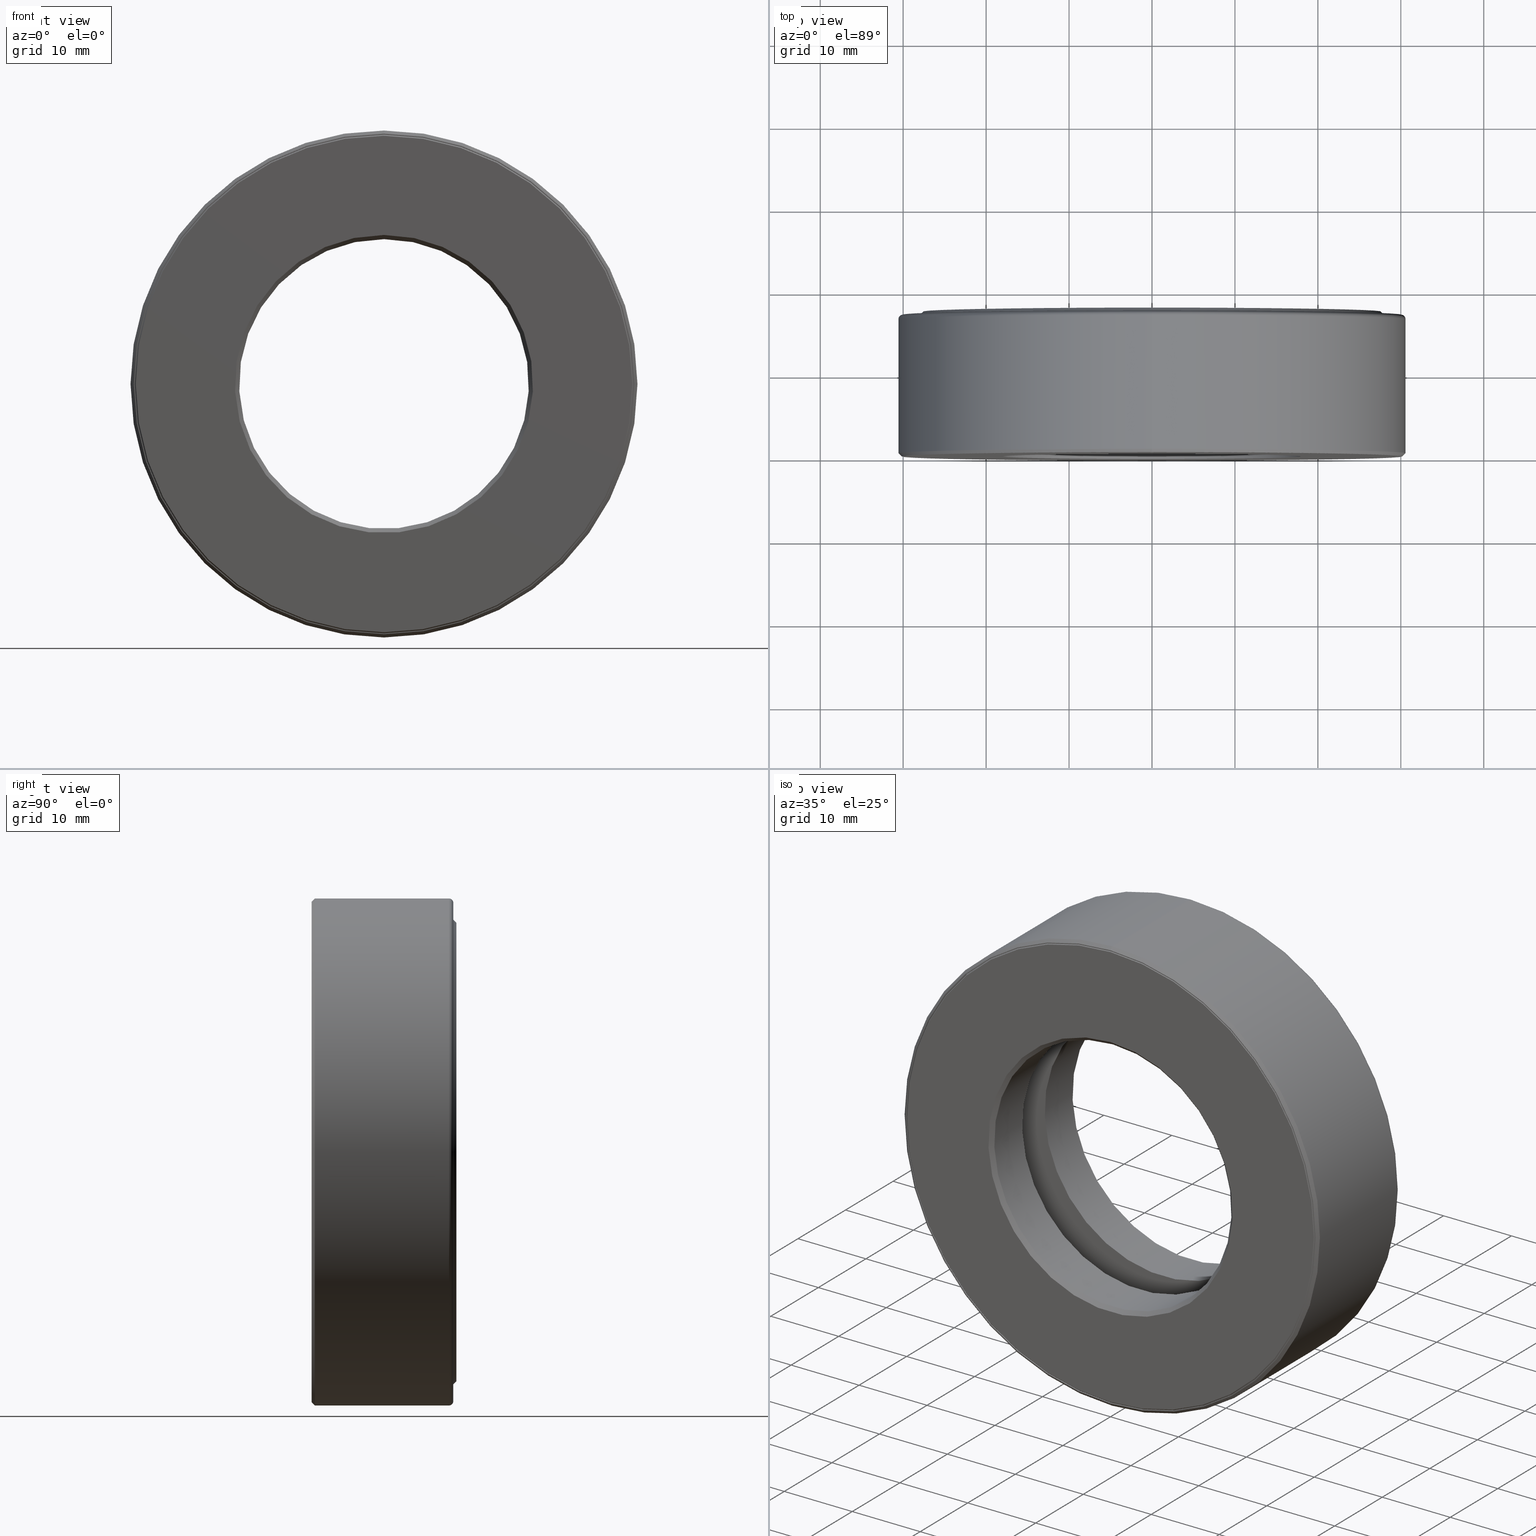
[diagram: canonical four-view strip — front | top / right | iso, engineering-drawing reading convention]
A machine part, canonical four-view strip (front | top / right | iso — engineering-drawing reading convention). The complete STEP part file that produces these views, byte-faithful:
ISO-10303-21;
HEADER;
FILE_DESCRIPTION (( 'STEP AP203' ),
    '1' );
FILE_NAME ('T-100-17A.step',
    '2016-06-29T18:27:21',
    ( '' ),
    ( '' ),
    'SwSTEP 2.0',
    'SolidWorks 2016',
    '' );
FILE_SCHEMA (( 'CONFIG_CONTROL_DESIGN' ));
ENDSEC;

DATA;
#1 = CONICAL_SURFACE ( 'NONE', #102, 1.188125000000000100, 0.7853981633974460600 ) ;
#2 = VERTEX_POINT ( 'NONE', #566 ) ;
#3 = EDGE_LOOP ( 'NONE', ( #135 ) ) ;
#4 = DIRECTION ( 'NONE',  ( -0.0000000000000000000, 1.000000000000000000, -0.0000000000000000000 ) ) ;
#5 = EDGE_LOOP ( 'NONE', ( #107 ) ) ;
#6 = EDGE_LOOP ( 'NONE', ( #100 ) ) ;
#7 = ORIENTED_EDGE ( 'NONE', *, *, #285, .T. ) ;
#8 = VERTEX_POINT ( 'NONE', #221 ) ;
#9 = ADVANCED_BREP_SHAPE_REPRESENTATION ( 'T-100-17A', ( #374, #154, #272, #131, #429, #91, #468 ), #404 ) ;
#10 = AXIS2_PLACEMENT_3D ( 'NONE', #507, #123, #599 ) ;
#11 = DIRECTION ( 'NONE',  ( 0.0000000000000000000, 0.0000000000000000000, 1.000000000000000000 ) ) ;
#12 = ORIENTED_EDGE ( 'NONE', *, *, #348, .T. ) ;
#13 = VERTEX_POINT ( 'NONE', #268 ) ;
#14 = EDGE_LOOP ( 'NONE', ( #346 ) ) ;
#15 = ORIENTED_EDGE ( 'NONE', *, *, #432, .T. ) ;
#16 = CARTESIAN_POINT ( 'NONE',  ( 0.0000000000000000000, 0.2500000000000001100, 0.0000000000000000000 ) ) ;
#17 = DIRECTION ( 'NONE',  ( -0.0000000000000000000, 1.000000000000000000, -0.0000000000000000000 ) ) ;
#18 = CARTESIAN_POINT ( 'NONE',  ( 0.0000000000000000000, -6.829619984160658000E-017, 0.0000000000000000000 ) ) ;
#19 = PERSON_AND_ORGANIZATION ( #299, #602 ) ;
#20 = EDGE_CURVE ( 'NONE', #86, #86, #68, .T. ) ;
#21 = EDGE_LOOP ( 'NONE', ( #570 ) ) ;
#22 = PERSON_AND_ORGANIZATION ( #299, #602 ) ;
#23 = DIRECTION ( 'NONE',  ( 0.0000000000000000000, 0.0000000000000000000, 1.000000000000000000 ) ) ;
#24 = DIRECTION ( 'NONE',  ( 0.0000000000000000000, 0.0000000000000000000, 1.000000000000000000 ) ) ;
#25 = PRODUCT_DEFINITION ( 'UNKNOWN', '', #105, #288 ) ;
#26 = DIRECTION ( 'NONE',  ( 0.0000000000000000000, 0.0000000000000000000, 1.000000000000000000 ) ) ;
#27 =( LENGTH_UNIT ( ) NAMED_UNIT ( * ) SI_UNIT ( $, .METRE. ) );
#28 = CARTESIAN_POINT ( 'NONE',  ( 0.0000000000000000000, -6.509481547403127300E-017, 0.0000000000000000000 ) ) ;
#29 = EDGE_CURVE ( 'NONE', #321, #321, #478, .T. ) ;
#30 = PERSON_AND_ORGANIZATION_ROLE ( 'design_owner' ) ;
#31 = PERSON_AND_ORGANIZATION ( #299, #602 ) ;
#32 = CARTESIAN_POINT ( 'NONE',  ( 0.0000000000000000000, 0.0000000000000000000, 0.0000000000000000000 ) ) ;
#33 = DIRECTION ( 'NONE',  ( -0.0000000000000000000, 1.000000000000000000, 0.0000000000000000000 ) ) ;
#34 = DIRECTION ( 'NONE',  ( 0.0000000000000000000, 0.0000000000000000000, 1.000000000000000000 ) ) ;
#35 =( NAMED_UNIT ( * ) SI_UNIT ( $, .STERADIAN. ) SOLID_ANGLE_UNIT ( ) );
#36 = DIRECTION ( 'NONE',  ( 0.0000000000000000000, 0.0000000000000000000, 1.000000000000000000 ) ) ;
#37 = AXIS2_PLACEMENT_3D ( 'NONE', #543, #400, #159 ) ;
#38 = CARTESIAN_POINT ( 'NONE',  ( 0.0000000000000000000, 0.0000000000000000000, 0.0000000000000000000 ) ) ;
#39 = ADVANCED_FACE ( 'NONE', ( #561, #97 ), #69, .F. ) ;
#40 = FACE_BOUND ( 'NONE', #229, .T. ) ;
#41 = DIRECTION ( 'NONE',  ( 0.0000000000000000000, -1.000000000000000000, 0.0000000000000000000 ) ) ;
#42 = CONICAL_SURFACE ( 'NONE', #389, 0.6874999999999998900, 0.7853981633974415100 ) ;
#43 = DIRECTION ( 'NONE',  ( -0.0000000000000000000, 1.000000000000000000, -0.0000000000000000000 ) ) ;
#44 = AXIS2_PLACEMENT_3D ( 'NONE', #168, #357, #230 ) ;
#45 = EDGE_CURVE ( 'NONE', #464, #464, #562, .T. ) ;
#46 = FACE_OUTER_BOUND ( 'NONE', #517, .T. ) ;
#47 = CONICAL_SURFACE ( 'NONE', #523, 0.6875000000000000000, 0.7853981633974415100 ) ;
#48 = LOCAL_TIME ( 14, 27, 21.00000000000000000, #52 ) ;
#49 = AXIS2_PLACEMENT_3D ( 'NONE', #431, #156, #484 ) ;
#50 = ORIENTED_EDGE ( 'NONE', *, *, #339, .T. ) ;
#51 = DIRECTION ( 'NONE',  ( 0.0000000000000000000, 0.0000000000000000000, 1.000000000000000000 ) ) ;
#52 = COORDINATED_UNIVERSAL_TIME_OFFSET ( 5, 0, .BEHIND. ) ;
#53 = EDGE_LOOP ( 'NONE', ( #50 ) ) ;
#54 = DIRECTION ( 'NONE',  ( 0.0000000000000000000, 0.0000000000000000000, 1.000000000000000000 ) ) ;
#55 = CARTESIAN_POINT ( 'NONE',  ( 0.0000000000000000000, 0.6875000000000000000, 0.0000000000000000000 ) ) ;
#56 = CARTESIAN_POINT ( 'NONE',  ( 0.0000000000000000000, 0.4375000000000000000, 0.0000000000000000000 ) ) ;
#57 = FACE_OUTER_BOUND ( 'NONE', #249, .T. ) ;
#58 = EDGE_CURVE ( 'NONE', #338, #338, #175, .T. ) ;
#59 = DIRECTION ( 'NONE',  ( 0.0000000000000000000, -1.000000000000000000, 0.0000000000000000000 ) ) ;
#60 = FACE_BOUND ( 'NONE', #446, .T. ) ;
#61 = ORIENTED_EDGE ( 'NONE', *, *, #395, .T. ) ;
#62 = CIRCLE ( 'NONE', #300, 1.176124999999999600 ) ;
#63 = EDGE_LOOP ( 'NONE', ( #584 ) ) ;
#64 = DIRECTION ( 'NONE',  ( -0.0000000000000000000, 1.000000000000000000, -0.0000000000000000000 ) ) ;
#65 = FACE_BOUND ( 'NONE', #382, .T. ) ;
#66 = CARTESIAN_POINT ( 'NONE',  ( 0.0000000000000000000, 0.0000000000000000000, 0.0000000000000000000 ) ) ;
#67 = AXIS2_PLACEMENT_3D ( 'NONE', #550, #284, #319 ) ;
#68 = CIRCLE ( 'NONE', #378, 1.123125000000000200 ) ;
#69 = CYLINDRICAL_SURFACE ( 'NONE', #99, 1.123125000000000200 ) ;
#70 = AXIS2_PLACEMENT_3D ( 'NONE', #304, #210, #54 ) ;
#71 = SECURITY_CLASSIFICATION_LEVEL ( 'unclassified' ) ;
#72 = DIRECTION ( 'NONE',  ( 0.0000000000000000000, 0.0000000000000000000, 1.000000000000000000 ) ) ;
#73 = ADVANCED_FACE ( 'NONE', ( ), #481, .T. ) ;
#74 = APPROVAL_STATUS ( 'not_yet_approved' ) ;
#75 = FACE_OUTER_BOUND ( 'NONE', #486, .T. ) ;
#76 = DIRECTION ( 'NONE',  ( 0.0000000000000000000, 0.0000000000000000000, 1.000000000000000000 ) ) ;
#77 = ADVANCED_FACE ( 'NONE', ( #340, #388 ), #548, .F. ) ;
#78 = FACE_OUTER_BOUND ( 'NONE', #359, .T. ) ;
#79 = EDGE_LOOP ( 'NONE', ( #417 ) ) ;
#80 = PLANE ( 'NONE',  #578 ) ;
#81 = CARTESIAN_POINT ( 'NONE',  ( 0.0000000000000000000, 0.6524999999999997500, 0.0000000000000000000 ) ) ;
#82 = DIRECTION ( 'NONE',  ( -0.0000000000000000000, 1.000000000000000000, 0.0000000000000000000 ) ) ;
#83 = AXIS2_PLACEMENT_3D ( 'NONE', #179, #460, #127 ) ;
#84 = AXIS2_PLACEMENT_3D ( 'NONE', #406, #82, #274 ) ;
#85 = EDGE_LOOP ( 'NONE', ( #254 ) ) ;
#86 = VERTEX_POINT ( 'NONE', #138 ) ;
#87 = ORIENTED_EDGE ( 'NONE', *, *, #267, .F. ) ;
#88 = CIRCLE ( 'NONE', #438, 0.6875000000000000000 ) ;
#89 = DIRECTION ( 'NONE',  ( 0.0000000000000000000, 0.0000000000000000000, 1.000000000000000000 ) ) ;
#90 = SPHERICAL_SURFACE ( 'NONE', #158, 0.1562500000000000000 ) ;
#91 = MANIFOLD_SOLID_BREP ( 'BALLS[3]', #394 ) ;
#92 = ORIENTED_EDGE ( 'NONE', *, *, #139, .T. ) ;
#93 = CYLINDRICAL_SURFACE ( 'NONE', #176, 0.6875000000000000000 ) ;
#94 = AXIS2_PLACEMENT_3D ( 'NONE', #181, #375, #89 ) ;
#95 = CC_DESIGN_DATE_AND_TIME_ASSIGNMENT ( #122, #449, ( #25 ) ) ;
#96 = FACE_OUTER_BOUND ( 'NONE', #85, .T. ) ;
#97 = FACE_OUTER_BOUND ( 'NONE', #79, .T. ) ;
#98 = FACE_OUTER_BOUND ( 'NONE', #118, .T. ) ;
#99 = AXIS2_PLACEMENT_3D ( 'NONE', #601, #405, #398 ) ;
#100 = ORIENTED_EDGE ( 'NONE', *, *, #29, .F. ) ;
#101 = PLANE ( 'NONE',  #600 ) ;
#102 = AXIS2_PLACEMENT_3D ( 'NONE', #18, #428, #51 ) ;
#103 = CIRCLE ( 'NONE', #529, 1.203125000000000000 ) ;
#104 = DIRECTION ( 'NONE',  ( 0.0000000000000000000, 0.0000000000000000000, 1.000000000000000000 ) ) ;
#105 = PRODUCT_DEFINITION_FORMATION_WITH_SPECIFIED_SOURCE ( 'ANY', '', #531, .NOT_KNOWN. ) ;
#106 = EDGE_CURVE ( 'NONE', #555, #555, #358, .T. ) ;
#107 = ORIENTED_EDGE ( 'NONE', *, *, #214, .T. ) ;
#108 = CLOSED_SHELL ( 'NONE', ( #463 ) ) ;
#109 = DIRECTION ( 'NONE',  ( 0.0000000000000000000, 0.0000000000000000000, 1.000000000000000000 ) ) ;
#110 = AXIS2_PLACEMENT_3D ( 'NONE', #248, #573, #11 ) ;
#111 = EDGE_LOOP ( 'NONE', ( #200 ) ) ;
#112 = FACE_BOUND ( 'NONE', #376, .T. ) ;
#113 = EDGE_LOOP ( 'NONE', ( #215 ) ) ;
#114 = AXIS2_PLACEMENT_3D ( 'NONE', #231, #280, #36 ) ;
#115 = FACE_OUTER_BOUND ( 'NONE', #192, .T. ) ;
#116 = CARTESIAN_POINT ( 'NONE',  ( 0.0000000000000000000, 0.02000000000000046900, 0.0000000000000000000 ) ) ;
#117 = CARTESIAN_POINT ( 'NONE',  ( 0.0000000000000000000, 0.4375000000000000000, 1.142874999999999900 ) ) ;
#118 = EDGE_LOOP ( 'NONE', ( #539 ) ) ;
#119 = CARTESIAN_POINT ( 'NONE',  ( 0.0000000000000000000, 0.4374999999999998300, 0.6875000000000000000 ) ) ;
#120 = DIRECTION ( 'NONE',  ( 0.0000000000000000000, 0.0000000000000000000, 1.000000000000000000 ) ) ;
#121 = CYLINDRICAL_SURFACE ( 'NONE', #37, 1.183125000000000000 ) ;
#122 = DATE_AND_TIME ( #191, #182 ) ;
#123 = DIRECTION ( 'NONE',  ( -0.0000000000000000000, 1.000000000000000000, -0.0000000000000000000 ) ) ;
#124 = VERTEX_POINT ( 'NONE', #193 ) ;
#125 = ORIENTED_EDGE ( 'NONE', *, *, #352, .F. ) ;
#126 = APPROVAL_ROLE ( '' ) ;
#127 = DIRECTION ( 'NONE',  ( 0.0000000000000000000, 0.0000000000000000000, 1.000000000000000000 ) ) ;
#128 = ADVANCED_FACE ( 'NONE', ( #345, #65 ), #370, .T. ) ;
#129 = AXIS2_PLACEMENT_3D ( 'NONE', #116, #495, #373 ) ;
#130 = ORIENTED_EDGE ( 'NONE', *, *, #58, .F. ) ;
#131 = MANIFOLD_SOLID_BREP ( 'BALLS[1]', #148 ) ;
#132 = DIRECTION ( 'NONE',  ( 1.000000000000000000, 0.0000000000000000000, 0.0000000000000000000 ) ) ;
#133 = DIRECTION ( 'NONE',  ( -0.0000000000000000000, 1.000000000000000000, -0.0000000000000000000 ) ) ;
#134 = DIRECTION ( 'NONE',  ( -0.0000000000000000000, 1.000000000000000000, -0.0000000000000000000 ) ) ;
#135 = ORIENTED_EDGE ( 'NONE', *, *, #352, .T. ) ;
#136 = VERTEX_POINT ( 'NONE', #234 ) ;
#137 = ADVANCED_FACE ( 'NONE', ( #98, #527 ), #80, .F. ) ;
#138 = CARTESIAN_POINT ( 'NONE',  ( 0.0000000000000000000, 0.6724999999999998800, 1.123125000000000200 ) ) ;
#139 = EDGE_CURVE ( 'NONE', #124, #124, #62, .T. ) ;
#140 = ADVANCED_FACE ( 'NONE', ( #595, #473 ), #265, .T. ) ;
#141 = CARTESIAN_POINT ( 'NONE',  ( 0.0000000000000000000, 0.6524999999999997500, 1.123125000000000200 ) ) ;
#142 = AXIS2_PLACEMENT_3D ( 'NONE', #171, #260, #494 ) ;
#143 = EDGE_LOOP ( 'NONE', ( #402 ) ) ;
#144 = VERTEX_POINT ( 'NONE', #224 ) ;
#145 = DIRECTION ( 'NONE',  ( 1.047444401652939400E-014, 0.0000000000000000000, 1.000000000000000000 ) ) ;
#146 = ORIENTED_EDGE ( 'NONE', *, *, #250, .F. ) ;
#147 = DATE_AND_TIME ( #201, #385 ) ;
#148 = CLOSED_SHELL ( 'NONE', ( #379 ) ) ;
#149 = SHAPE_DEFINITION_REPRESENTATION ( #572, #9 ) ;
#150 = AXIS2_PLACEMENT_3D ( 'NONE', #309, #4, #157 ) ;
#151 = APPROVAL ( #497, 'UNSPECIFIED' ) ;
#152 = PLANE ( 'NONE',  #110 ) ;
#153 = CARTESIAN_POINT ( 'NONE',  ( 0.0000000000000000000, 0.6674999999999995400, 0.0000000000000000000 ) ) ;
#154 = MANIFOLD_SOLID_BREP ( 'Revolve2[2]', #256 ) ;
#155 = CARTESIAN_POINT ( 'NONE',  ( 0.0000000000000000000, 0.4374999999999998300, 0.0000000000000000000 ) ) ;
#156 = DIRECTION ( 'NONE',  ( 0.0000000000000000000, -1.000000000000000000, 0.0000000000000000000 ) ) ;
#157 = DIRECTION ( 'NONE',  ( 0.0000000000000000000, 0.0000000000000000000, 1.000000000000000000 ) ) ;
#158 = AXIS2_PLACEMENT_3D ( 'NONE', #330, #565, #145 ) ;
#159 = DIRECTION ( 'NONE',  ( 0.0000000000000000000, 0.0000000000000000000, 1.000000000000000000 ) ) ;
#160 = FACE_OUTER_BOUND ( 'NONE', #3, .T. ) ;
#161 = DIRECTION ( 'NONE',  ( -0.0000000000000000000, 1.000000000000000000, -0.0000000000000000000 ) ) ;
#162 = PRODUCT_RELATED_PRODUCT_CATEGORY ( 'detail', '', ( #531 ) ) ;
#163 = VERTEX_POINT ( 'NONE', #220 ) ;
#164 = DIRECTION ( 'NONE',  ( -0.0000000000000000000, 1.000000000000000000, -0.0000000000000000000 ) ) ;
#165 = DIRECTION ( 'NONE',  ( 0.0000000000000000000, 0.0000000000000000000, 1.000000000000000000 ) ) ;
#166 = FACE_BOUND ( 'NONE', #63, .T. ) ;
#167 = APPLICATION_CONTEXT ( 'configuration controlled 3d designs of mechanical parts and assemblies' ) ;
#168 = CARTESIAN_POINT ( 'NONE',  ( 1.017874999999999900, 0.3437500000000000000, -7.107783135549907000E-015 ) ) ;
#169 = CARTESIAN_POINT ( 'NONE',  ( 0.0000000000000000000, 0.2499999999999998600, 1.142874999999999900 ) ) ;
#170 = AXIS2_PLACEMENT_3D ( 'NONE', #450, #279, #132 ) ;
#171 = CARTESIAN_POINT ( 'NONE',  ( 0.0000000000000000000, 0.4375000000000000000, 0.0000000000000000000 ) ) ;
#172 = APPROVAL_PERSON_ORGANIZATION ( #22, #151, #360 ) ;
#173 = CARTESIAN_POINT ( 'NONE',  ( 0.0000000000000000000, -6.509481547403127300E-017, 1.178125000000000100 ) ) ;
#174 = CARTESIAN_POINT ( 'NONE',  ( 0.0000000000000000000, 0.02000000000000046900, 0.0000000000000000000 ) ) ;
#175 = CIRCLE ( 'NONE', #83, 1.183125000000000000 ) ;
#176 = AXIS2_PLACEMENT_3D ( 'NONE', #66, #396, #270 ) ;
#177 =( CONVERSION_BASED_UNIT ( 'INCH', #579 ) LENGTH_UNIT ( ) NAMED_UNIT ( #419 ) );
#178 = DIRECTION ( 'NONE',  ( 0.0000000000000000000, 0.0000000000000000000, 1.000000000000000000 ) ) ;
#179 = CARTESIAN_POINT ( 'NONE',  ( 0.0000000000000000000, 0.004999999999999910800, 0.0000000000000000000 ) ) ;
#180 = CIRCLE ( 'NONE', #293, 0.7075000000000001300 ) ;
#181 = CARTESIAN_POINT ( 'NONE',  ( 0.0000000000000000000, 0.0000000000000000000, 0.0000000000000000000 ) ) ;
#182 = LOCAL_TIME ( 14, 27, 21.00000000000000000, #500 ) ;
#183 = ADVANCED_FACE ( 'NONE', ( ), #90, .T. ) ;
#184 = ORIENTED_EDGE ( 'NONE', *, *, #432, .F. ) ;
#185 = PLANE ( 'NONE',  #519 ) ;
#186 = CLOSED_SHELL ( 'NONE', ( #73 ) ) ;
#187 = AXIS2_PLACEMENT_3D ( 'NONE', #28, #164, #581 ) ;
#188 = ADVANCED_FACE ( 'NONE', ( #46, #530 ), #480, .T. ) ;
#189 = AXIS2_PLACEMENT_3D ( 'NONE', #223, #41, #371 ) ;
#190 = ADVANCED_FACE ( 'NONE', ( #574, #545 ), #152, .F. ) ;
#191 = CALENDAR_DATE ( 2016, 29, 6 ) ;
#192 = EDGE_LOOP ( 'NONE', ( #372 ) ) ;
#193 = CARTESIAN_POINT ( 'NONE',  ( 0.0000000000000000000, 0.5995000000000001400, 1.176124999999999600 ) ) ;
#194 = FACE_OUTER_BOUND ( 'NONE', #596, .T. ) ;
#195 = APPROVAL_DATE_TIME ( #399, #333 ) ;
#196 = AXIS2_PLACEMENT_3D ( 'NONE', #451, #514, #598 ) ;
#197 = ORIENTED_EDGE ( 'NONE', *, *, #479, .T. ) ;
#198 = EDGE_LOOP ( 'NONE', ( #544 ) ) ;
#199 = CC_DESIGN_PERSON_AND_ORGANIZATION_ASSIGNMENT ( #392, #314, ( #105 ) ) ;
#200 = ORIENTED_EDGE ( 'NONE', *, *, #297, .F. ) ;
#201 = CALENDAR_DATE ( 2016, 29, 6 ) ;
#202 = FACE_OUTER_BOUND ( 'NONE', #492, .T. ) ;
#203 = DIRECTION ( 'NONE',  ( -0.0000000000000000000, 1.000000000000000000, -0.0000000000000000000 ) ) ;
#204 = AXIS2_PLACEMENT_3D ( 'NONE', #306, #350, #208 ) ;
#205 = TOROIDAL_SURFACE ( 'NONE', #538, 1.017874999999999900, 0.1562499999999999200 ) ;
#206 = CC_DESIGN_APPROVAL ( #333, ( #422 ) ) ;
#207 = CYLINDRICAL_SURFACE ( 'NONE', #387, 1.176124999999999600 ) ;
#208 = DIRECTION ( 'NONE',  ( 0.0000000000000000000, 0.0000000000000000000, 1.000000000000000000 ) ) ;
#209 = EDGE_LOOP ( 'NONE', ( #587 ) ) ;
#210 = DIRECTION ( 'NONE',  ( -0.0000000000000000000, 1.000000000000000000, -0.0000000000000000000 ) ) ;
#211 = DIRECTION ( 'NONE',  ( 0.0000000000000000000, 0.0000000000000000000, 1.000000000000000000 ) ) ;
#212 = AXIS2_PLACEMENT_3D ( 'NONE', #583, #17, #26 ) ;
#213 = CARTESIAN_POINT ( 'NONE',  ( 0.0000000000000000000, 0.6875000000000000000, 0.7075000000000001300 ) ) ;
#214 = EDGE_CURVE ( 'NONE', #470, #470, #355, .T. ) ;
#215 = ORIENTED_EDGE ( 'NONE', *, *, #20, .F. ) ;
#216 = CC_DESIGN_APPROVAL ( #554, ( #105 ) ) ;
#217 = FACE_OUTER_BOUND ( 'NONE', #381, .T. ) ;
#218 = CARTESIAN_POINT ( 'NONE',  ( 3.553891567774953500E-015, 0.3437500000000000000, 1.017874999999999900 ) ) ;
#219 = ORIENTED_EDGE ( 'NONE', *, *, #238, .T. ) ;
#220 = CARTESIAN_POINT ( 'NONE',  ( 0.0000000000000000000, 0.02000000000000046900, 0.6874999999999998900 ) ) ;
#221 = CARTESIAN_POINT ( 'NONE',  ( 0.0000000000000000000, 0.6674999999999995400, 0.6875000000000000000 ) ) ;
#222 = CC_DESIGN_PERSON_AND_ORGANIZATION_ASSIGNMENT ( #242, #454, ( #422 ) ) ;
#223 = CARTESIAN_POINT ( 'NONE',  ( 2.909758970731865100E-016, 0.4374999999999998900, 0.0000000000000000000 ) ) ;
#224 = CARTESIAN_POINT ( 'NONE',  ( 0.0000000000000000000, 0.4375000000000000000, 1.176124999999999900 ) ) ;
#225 = FACE_OUTER_BOUND ( 'NONE', #143, .T. ) ;
#226 = CARTESIAN_POINT ( 'NONE',  ( 0.0000000000000000000, 0.4375000000000000000, 0.0000000000000000000 ) ) ;
#227 = CARTESIAN_POINT ( 'NONE',  ( 0.0000000000000000000, 0.2499999999999999200, 0.8928749999999999700 ) ) ;
#228 = AXIS2_PLACEMENT_3D ( 'NONE', #38, #43, #506 ) ;
#229 = EDGE_LOOP ( 'NONE', ( #505 ) ) ;
#230 = DIRECTION ( 'NONE',  ( -1.000000000000000000, 0.0000000000000000000, 6.982962677686269100E-015 ) ) ;
#231 = CARTESIAN_POINT ( 'NONE',  ( 0.0000000000000000000, 0.0000000000000000000, 0.0000000000000000000 ) ) ;
#232 = ADVANCED_FACE ( 'NONE', ( #334, #115 ), #233, .T. ) ;
#233 = PLANE ( 'NONE',  #414 ) ;
#234 = CARTESIAN_POINT ( 'NONE',  ( 0.0000000000000000000, 0.2500000000000001100, 0.6875000000000000000 ) ) ;
#235 = EDGE_LOOP ( 'NONE', ( #87 ) ) ;
#236 = CIRCLE ( 'NONE', #10, 1.183124999999999800 ) ;
#237 = EDGE_LOOP ( 'NONE', ( #197 ) ) ;
#238 = EDGE_CURVE ( 'NONE', #136, #136, #88, .T. ) ;
#239 = DIRECTION ( 'NONE',  ( 0.0000000000000000000, -1.000000000000000000, 0.0000000000000000000 ) ) ;
#240 = FACE_OUTER_BOUND ( 'NONE', #349, .T. ) ;
#241 = AXIS2_PLACEMENT_3D ( 'NONE', #535, #266, #461 ) ;
#242 = PERSON_AND_ORGANIZATION ( #299, #602 ) ;
#243 = EDGE_LOOP ( 'NONE', ( #440 ) ) ;
#244 = ORIENTED_EDGE ( 'NONE', *, *, #238, .F. ) ;
#245 = CLOSED_SHELL ( 'NONE', ( #318, #521, #77, #137, #39, #313, #510, #140, #281, #190, #456, #466, #563, #605, #597, #277 ) ) ;
#246 = FACE_BOUND ( 'NONE', #353, .T. ) ;
#247 = CC_DESIGN_DATE_AND_TIME_ASSIGNMENT ( #147, #403, ( #422 ) ) ;
#248 = CARTESIAN_POINT ( 'NONE',  ( -2.398680184444861200E-031, -6.709876063954291900E-017, 0.0000000000000000000 ) ) ;
#249 = EDGE_LOOP ( 'NONE', ( #61 ) ) ;
#250 = EDGE_CURVE ( 'NONE', #2, #2, #278, .T. ) ;
#251 = PLANE ( 'NONE',  #49 ) ;
#252 = FACE_OUTER_BOUND ( 'NONE', #528, .T. ) ;
#253 = VERTEX_POINT ( 'NONE', #356 ) ;
#254 = ORIENTED_EDGE ( 'NONE', *, *, #401, .F. ) ;
#255 = DIRECTION ( 'NONE',  ( 0.0000000000000000000, 0.0000000000000000000, 1.000000000000000000 ) ) ;
#256 = CLOSED_SHELL ( 'NONE', ( #232, #327, #559, #408, #287, #128, #188, #503 ) ) ;
#257 = EDGE_LOOP ( 'NONE', ( #518 ) ) ;
#258 = CARTESIAN_POINT ( 'NONE',  ( 0.0000000000000000000, 0.6524999999999997500, 0.0000000000000000000 ) ) ;
#259 = AXIS2_PLACEMENT_3D ( 'NONE', #341, #437, #488 ) ;
#260 = DIRECTION ( 'NONE',  ( -0.0000000000000000000, 1.000000000000000000, -0.0000000000000000000 ) ) ;
#261 = DIRECTION ( 'NONE',  ( 0.0000000000000000000, -0.0000000000000000000, -1.000000000000000000 ) ) ;
#262 = EDGE_LOOP ( 'NONE', ( #184 ) ) ;
#263 = DIRECTION ( 'NONE',  ( 0.0000000000000000000, 0.0000000000000000000, 1.000000000000000000 ) ) ;
#264 = FACE_OUTER_BOUND ( 'NONE', #344, .T. ) ;
#265 = CYLINDRICAL_SURFACE ( 'NONE', #94, 1.203125000000000000 ) ;
#266 = DIRECTION ( 'NONE',  ( -0.0000000000000000000, 1.000000000000000000, -0.0000000000000000000 ) ) ;
#267 = EDGE_CURVE ( 'NONE', #275, #275, #606, .T. ) ;
#268 = CARTESIAN_POINT ( 'NONE',  ( 0.0000000000000000000, 0.0000000000000000000, 0.7075000000000000200 ) ) ;
#269 = DIRECTION ( 'NONE',  ( 0.0000000000000000000, 0.0000000000000000000, 1.000000000000000000 ) ) ;
#270 = DIRECTION ( 'NONE',  ( 0.0000000000000000000, 0.0000000000000000000, 1.000000000000000000 ) ) ;
#271 = APPROVAL_ROLE ( '' ) ;
#272 = MANIFOLD_SOLID_BREP ( 'Revolve3', #186 ) ;
#273 = CARTESIAN_POINT ( 'NONE',  ( 0.0000000000000000000, 0.6524999999999997500, 0.0000000000000000000 ) ) ;
#274 = DIRECTION ( 'NONE',  ( 0.0000000000000000000, 0.0000000000000000000, 1.000000000000000000 ) ) ;
#275 = VERTEX_POINT ( 'NONE', #427 ) ;
#276 = APPLICATION_PROTOCOL_DEFINITION ( 'international standard', 'config_control_design', 1994, #361 ) ;
#277 = ADVANCED_FACE ( 'NONE', ( #603, #202 ), #101, .F. ) ;
#278 = CIRCLE ( 'NONE', #259, 0.8928749999999999700 ) ;
#279 = DIRECTION ( 'NONE',  ( 0.0000000000000000000, 0.0000000000000000000, -1.000000000000000000 ) ) ;
#280 = DIRECTION ( 'NONE',  ( -0.0000000000000000000, 1.000000000000000000, -0.0000000000000000000 ) ) ;
#281 = ADVANCED_FACE ( 'NONE', ( #439, #166 ), #1, .T. ) ;
#282 = FACE_OUTER_BOUND ( 'NONE', #6, .T. ) ;
#283 = LOCAL_TIME ( 14, 27, 21.00000000000000000, #320 ) ;
#284 = DIRECTION ( 'NONE',  ( -0.0000000000000000000, 1.000000000000000000, -0.0000000000000000000 ) ) ;
#285 = EDGE_CURVE ( 'NONE', #568, #568, #525, .T. ) ;
#286 = EDGE_LOOP ( 'NONE', ( #125 ) ) ;
#287 = ADVANCED_FACE ( 'NONE', ( #391, #302 ), #47, .F. ) ;
#288 = DESIGN_CONTEXT ( 'detailed design', #167, 'design' ) ;
#289 = PERSON_AND_ORGANIZATION ( #299, #602 ) ;
#290 = DIRECTION ( 'NONE',  ( 0.0000000000000000000, 0.0000000000000000000, 1.000000000000000000 ) ) ;
#291 = CARTESIAN_POINT ( 'NONE',  ( 0.0000000000000000000, 0.6875000000000000000, 0.0000000000000000000 ) ) ;
#292 = CIRCLE ( 'NONE', #187, 1.178125000000000100 ) ;
#293 = AXIS2_PLACEMENT_3D ( 'NONE', #351, #64, #211 ) ;
#294 = EDGE_LOOP ( 'NONE', ( #219 ) ) ;
#295 = FACE_OUTER_BOUND ( 'NONE', #235, .T. ) ;
#296 = EDGE_LOOP ( 'NONE', ( #465 ) ) ;
#297 = EDGE_CURVE ( 'NONE', #571, #571, #590, .T. ) ;
#298 = DATE_AND_TIME ( #310, #283 ) ;
#299 = PERSON ( 'UNSPECIFIED', 'UNSPECIFIED', 'UNSPECIFIED', ('UNSPECIFIED'), ('UNSPECIFIED'), ('UNSPECIFIED') ) ;
#300 = AXIS2_PLACEMENT_3D ( 'NONE', #418, #564, #290 ) ;
#301 = ORIENTED_EDGE ( 'NONE', *, *, #459, .T. ) ;
#302 = FACE_BOUND ( 'NONE', #257, .T. ) ;
#303 = DIRECTION ( 'NONE',  ( 0.0000000000000000000, -1.000000000000000000, 0.0000000000000000000 ) ) ;
#304 = CARTESIAN_POINT ( 'NONE',  ( 0.0000000000000000000, 0.6724999999999998800, 0.0000000000000000000 ) ) ;
#305 = ORIENTED_EDGE ( 'NONE', *, *, #339, .F. ) ;
#306 = CARTESIAN_POINT ( 'NONE',  ( 0.0000000000000000000, 0.6524999999999997500, 0.0000000000000000000 ) ) ;
#307 = AXIS2_PLACEMENT_3D ( 'NONE', #315, #589, #409 ) ;
#308 = CARTESIAN_POINT ( 'NONE',  ( 0.0000000000000000000, -6.590132143747920800E-017, 1.183124999999999800 ) ) ;
#309 = CARTESIAN_POINT ( 'NONE',  ( 0.0000000000000000000, 0.6674999999999995400, 0.0000000000000000000 ) ) ;
#310 = CALENDAR_DATE ( 2016, 29, 6 ) ;
#311 = ORIENTED_EDGE ( 'NONE', *, *, #459, .F. ) ;
#312 = CARTESIAN_POINT ( 'NONE',  ( 0.0000000000000000000, 0.01499999999999997700, 1.203125000000000000 ) ) ;
#313 = ADVANCED_FACE ( 'NONE', ( #483, #469 ), #251, .F. ) ;
#314 = PERSON_AND_ORGANIZATION_ROLE ( 'design_supplier' ) ;
#315 = CARTESIAN_POINT ( 'NONE',  ( 0.0000000000000000000, -6.829619984160658000E-017, 0.0000000000000000000 ) ) ;
#316 = PLANE ( 'NONE',  #84 ) ;
#317 = CIRCLE ( 'NONE', #142, 1.176124999999999900 ) ;
#318 = ADVANCED_FACE ( 'NONE', ( #282, #160 ), #343, .F. ) ;
#319 = DIRECTION ( 'NONE',  ( 0.0000000000000000000, 0.0000000000000000000, 1.000000000000000000 ) ) ;
#320 = COORDINATED_UNIVERSAL_TIME_OFFSET ( 5, 0, .BEHIND. ) ;
#321 = VERTEX_POINT ( 'NONE', #227 ) ;
#322 = AXIS2_PLACEMENT_3D ( 'NONE', #441, #448, #269 ) ;
#323 = CC_DESIGN_PERSON_AND_ORGANIZATION_ASSIGNMENT ( #426, #588, ( #105 ) ) ;
#324 = EDGE_CURVE ( 'NONE', #477, #477, #433, .T. ) ;
#325 = ORIENTED_EDGE ( 'NONE', *, *, #324, .T. ) ;
#326 = COORDINATED_UNIVERSAL_TIME_OFFSET ( 5, 0, .BEHIND. ) ;
#327 = ADVANCED_FACE ( 'NONE', ( #240, #225 ), #205, .F. ) ;
#328 = DIRECTION ( 'NONE',  ( 0.0000000000000000000, 0.0000000000000000000, -1.000000000000000000 ) ) ;
#329 = CARTESIAN_POINT ( 'NONE',  ( 0.0000000000000000000, -6.829619984160658000E-017, 1.188125000000000100 ) ) ;
#330 = CARTESIAN_POINT ( 'NONE',  ( -1.066167470332486300E-014, 0.3437500000000000000, -1.017874999999999900 ) ) ;
#331 = AXIS2_PLACEMENT_3D ( 'NONE', #81, #556, #34 ) ;
#332 = FACE_OUTER_BOUND ( 'NONE', #496, .T. ) ;
#333 = APPROVAL ( #74, 'UNSPECIFIED' ) ;
#334 = FACE_BOUND ( 'NONE', #21, .T. ) ;
#335 = EDGE_LOOP ( 'NONE', ( #472 ) ) ;
#336 = EDGE_CURVE ( 'NONE', #367, #367, #103, .T. ) ;
#337 = ORIENTED_EDGE ( 'NONE', *, *, #425, .F. ) ;
#338 = VERTEX_POINT ( 'NONE', #552 ) ;
#339 = EDGE_CURVE ( 'NONE', #380, #380, #180, .T. ) ;
#340 = FACE_OUTER_BOUND ( 'NONE', #471, .T. ) ;
#341 = CARTESIAN_POINT ( 'NONE',  ( 0.0000000000000000000, 0.4375000000000000000, 0.0000000000000000000 ) ) ;
#342 = CARTESIAN_POINT ( 'NONE',  ( 0.0000000000000000000, 0.3437500000000000000, 0.0000000000000000000 ) ) ;
#343 = TOROIDAL_SURFACE ( 'NONE', #558, 1.017874999999999900, 0.1562500000000000000 ) ;
#344 = EDGE_LOOP ( 'NONE', ( #325 ) ) ;
#345 = FACE_OUTER_BOUND ( 'NONE', #524, .T. ) ;
#346 = ORIENTED_EDGE ( 'NONE', *, *, #58, .T. ) ;
#347 = DIRECTION ( 'NONE',  ( 0.0000000000000000000, -0.0000000000000000000, -1.000000000000000000 ) ) ;
#348 = EDGE_CURVE ( 'NONE', #8, #8, #534, .T. ) ;
#349 = EDGE_LOOP ( 'NONE', ( #474 ) ) ;
#350 = DIRECTION ( 'NONE',  ( -0.0000000000000000000, 1.000000000000000000, -0.0000000000000000000 ) ) ;
#351 = CARTESIAN_POINT ( 'NONE',  ( 0.0000000000000000000, 0.6875000000000000000, 0.0000000000000000000 ) ) ;
#352 = EDGE_CURVE ( 'NONE', #377, #377, #412, .T. ) ;
#353 = EDGE_LOOP ( 'NONE', ( #7 ) ) ;
#354 = SPHERICAL_SURFACE ( 'NONE', #44, 0.1562500000000000000 ) ;
#355 = CIRCLE ( 'NONE', #569, 1.183125000000000000 ) ;
#356 = CARTESIAN_POINT ( 'NONE',  ( 0.0000000000000000000, 0.6524999999999997500, 1.203125000000000000 ) ) ;
#357 = DIRECTION ( 'NONE',  ( 6.982962677686269100E-015, -0.0000000000000000000, 1.000000000000000000 ) ) ;
#358 = CIRCLE ( 'NONE', #307, 1.188125000000000100 ) ;
#359 = EDGE_LOOP ( 'NONE', ( #146 ) ) ;
#360 = APPROVAL_ROLE ( '' ) ;
#361 = APPLICATION_CONTEXT ( 'configuration controlled 3d designs of mechanical parts and assemblies' ) ;
#362 = FACE_OUTER_BOUND ( 'NONE', #335, .T. ) ;
#363 = DIRECTION ( 'NONE',  ( 0.0000000000000000000, -0.0000000000000000000, -1.000000000000000000 ) ) ;
#364 = LOCAL_TIME ( 14, 27, 21.00000000000000000, #536 ) ;
#365 = AXIS2_PLACEMENT_3D ( 'NONE', #55, #386, #104 ) ;
#366 = CARTESIAN_POINT ( 'NONE',  ( 0.0000000000000000000, 0.2499999999999998600, 1.183124999999999800 ) ) ;
#367 = VERTEX_POINT ( 'NONE', #312 ) ;
#368 = DIRECTION ( 'NONE',  ( 0.0000000000000000000, -1.000000000000000000, 0.0000000000000000000 ) ) ;
#369 = ORIENTED_EDGE ( 'NONE', *, *, #45, .F. ) ;
#370 = PLANE ( 'NONE',  #453 ) ;
#371 = DIRECTION ( 'NONE',  ( 0.0000000000000000000, -0.0000000000000000000, -1.000000000000000000 ) ) ;
#372 = ORIENTED_EDGE ( 'NONE', *, *, #395, .F. ) ;
#373 = DIRECTION ( 'NONE',  ( 0.0000000000000000000, 0.0000000000000000000, 1.000000000000000000 ) ) ;
#374 = MANIFOLD_SOLID_BREP ( 'Revolve2[1]', #245 ) ;
#375 = DIRECTION ( 'NONE',  ( -0.0000000000000000000, 1.000000000000000000, -0.0000000000000000000 ) ) ;
#376 = EDGE_LOOP ( 'NONE', ( #301 ) ) ;
#377 = VERTEX_POINT ( 'NONE', #169 ) ;
#378 = AXIS2_PLACEMENT_3D ( 'NONE', #549, #416, #178 ) ;
#379 = ADVANCED_FACE ( 'NONE', ( ), #452, .T. ) ;
#380 = VERTEX_POINT ( 'NONE', #213 ) ;
#381 = EDGE_LOOP ( 'NONE', ( #337 ) ) ;
#382 = EDGE_LOOP ( 'NONE', ( #305 ) ) ;
#383 = CONICAL_SURFACE ( 'NONE', #241, 1.178125000000000100, 0.7853981633974453900 ) ;
#384 = DIRECTION ( 'NONE',  ( 0.0000000000000000000, 0.0000000000000000000, 1.000000000000000000 ) ) ;
#385 = LOCAL_TIME ( 14, 27, 21.00000000000000000, #326 ) ;
#386 = DIRECTION ( 'NONE',  ( -0.0000000000000000000, 1.000000000000000000, -0.0000000000000000000 ) ) ;
#387 = AXIS2_PLACEMENT_3D ( 'NONE', #512, #133, #120 ) ;
#388 = FACE_OUTER_BOUND ( 'NONE', #5, .T. ) ;
#389 = AXIS2_PLACEMENT_3D ( 'NONE', #174, #368, #499 ) ;
#390 = CARTESIAN_POINT ( 'NONE',  ( 0.0000000000000000000, 0.3437500000000000000, 0.0000000000000000000 ) ) ;
#391 = FACE_OUTER_BOUND ( 'NONE', #53, .T. ) ;
#392 = PERSON_AND_ORGANIZATION ( #299, #602 ) ;
#393 = CARTESIAN_POINT ( 'NONE',  ( 0.0000000000000000000, 0.2499999999999998600, 0.0000000000000000000 ) ) ;
#394 = CLOSED_SHELL ( 'NONE', ( #183 ) ) ;
#395 = EDGE_CURVE ( 'NONE', #144, #144, #317, .T. ) ;
#396 = DIRECTION ( 'NONE',  ( -0.0000000000000000000, 1.000000000000000000, -0.0000000000000000000 ) ) ;
#397 = MECHANICAL_CONTEXT ( 'NONE', #361, 'mechanical' ) ;
#398 = DIRECTION ( 'NONE',  ( 0.0000000000000000000, 0.0000000000000000000, 1.000000000000000000 ) ) ;
#399 = DATE_AND_TIME ( #542, #48 ) ;
#400 = DIRECTION ( 'NONE',  ( -0.0000000000000000000, 1.000000000000000000, -0.0000000000000000000 ) ) ;
#401 = EDGE_CURVE ( 'NONE', #504, #504, #292, .T. ) ;
#402 = ORIENTED_EDGE ( 'NONE', *, *, #511, .F. ) ;
#403 = DATE_TIME_ROLE ( 'classification_date' ) ;
#404 =( GEOMETRIC_REPRESENTATION_CONTEXT ( 3 ) GLOBAL_UNCERTAINTY_ASSIGNED_CONTEXT ( ( #508 ) ) GLOBAL_UNIT_ASSIGNED_CONTEXT ( ( #177, #501, #35 ) ) REPRESENTATION_CONTEXT ( 'NONE', 'WORKASPACE' ) );
#405 = DIRECTION ( 'NONE',  ( -0.0000000000000000000, 1.000000000000000000, -0.0000000000000000000 ) ) ;
#406 = CARTESIAN_POINT ( 'NONE',  ( -1.353534274569649900E-032, -3.254740773701563600E-017, 0.0000000000000000000 ) ) ;
#407 = PERSON_AND_ORGANIZATION_ROLE ( 'creator' ) ;
#408 = ADVANCED_FACE ( 'NONE', ( #75, #252 ), #93, .F. ) ;
#409 = DIRECTION ( 'NONE',  ( 0.0000000000000000000, 0.0000000000000000000, 1.000000000000000000 ) ) ;
#410 = DIRECTION ( 'NONE',  ( 0.0000000000000000000, -1.000000000000000000, 0.0000000000000000000 ) ) ;
#411 = CARTESIAN_POINT ( 'NONE',  ( 0.0000000000000000000, 0.6875000000000000000, 0.0000000000000000000 ) ) ;
#412 = CIRCLE ( 'NONE', #322, 1.142874999999999900 ) ;
#413 = DATE_AND_TIME ( #515, #364 ) ;
#414 = AXIS2_PLACEMENT_3D ( 'NONE', #56, #303, #347 ) ;
#415 = PERSON_AND_ORGANIZATION ( #299, #602 ) ;
#416 = DIRECTION ( 'NONE',  ( -0.0000000000000000000, 1.000000000000000000, -0.0000000000000000000 ) ) ;
#417 = ORIENTED_EDGE ( 'NONE', *, *, #20, .T. ) ;
#418 = CARTESIAN_POINT ( 'NONE',  ( 0.0000000000000000000, 0.5995000000000001400, 0.0000000000000000000 ) ) ;
#419 = DIMENSIONAL_EXPONENTS ( 1.000000000000000000, 0.0000000000000000000, 0.0000000000000000000, 0.0000000000000000000, 0.0000000000000000000, 0.0000000000000000000, 0.0000000000000000000 ) ;
#420 = AXIS2_PLACEMENT_3D ( 'NONE', #226, #134, #76 ) ;
#421 = CIRCLE ( 'NONE', #204, 1.203125000000000000 ) ;
#422 = SECURITY_CLASSIFICATION ( '', '', #71 ) ;
#423 = ORIENTED_EDGE ( 'NONE', *, *, #29, .T. ) ;
#424 = ORIENTED_EDGE ( 'NONE', *, *, #479, .F. ) ;
#425 = EDGE_CURVE ( 'NONE', #13, #13, #551, .T. ) ;
#426 = PERSON_AND_ORGANIZATION ( #299, #602 ) ;
#427 = CARTESIAN_POINT ( 'NONE',  ( 0.0000000000000000000, 0.6724999999999998800, 1.183125000000000000 ) ) ;
#428 = DIRECTION ( 'NONE',  ( -0.0000000000000000000, 1.000000000000000000, -0.0000000000000000000 ) ) ;
#429 = MANIFOLD_SOLID_BREP ( 'BALLS[2]', #108 ) ;
#430 = EDGE_LOOP ( 'NONE', ( #244 ) ) ;
#431 = CARTESIAN_POINT ( 'NONE',  ( 0.0000000000000000000, 0.6724999999999998800, 0.0000000000000000000 ) ) ;
#432 = EDGE_CURVE ( 'NONE', #253, #253, #421, .T. ) ;
#433 = CIRCLE ( 'NONE', #475, 1.183124999999999800 ) ;
#434 = APPROVAL_PERSON_ORGANIZATION ( #19, #554, #271 ) ;
#435 = FACE_OUTER_BOUND ( 'NONE', #294, .T. ) ;
#436 = ORIENTED_EDGE ( 'NONE', *, *, #324, .F. ) ;
#437 = DIRECTION ( 'NONE',  ( -0.0000000000000000000, 1.000000000000000000, -0.0000000000000000000 ) ) ;
#438 = AXIS2_PLACEMENT_3D ( 'NONE', #16, #161, #384 ) ;
#439 = FACE_OUTER_BOUND ( 'NONE', #243, .T. ) ;
#440 = ORIENTED_EDGE ( 'NONE', *, *, #336, .F. ) ;
#441 = CARTESIAN_POINT ( 'NONE',  ( 0.0000000000000000000, 0.2499999999999998600, 0.0000000000000000000 ) ) ;
#442 = DIRECTION ( 'NONE',  ( -0.0000000000000000000, 1.000000000000000000, -0.0000000000000000000 ) ) ;
#443 = CC_DESIGN_APPROVAL ( #151, ( #25 ) ) ;
#444 = CARTESIAN_POINT ( 'NONE',  ( 0.0000000000000000000, 0.01499999999999997700, 0.0000000000000000000 ) ) ;
#445 = APPROVAL_DATE_TIME ( #298, #151 ) ;
#446 = EDGE_LOOP ( 'NONE', ( #487 ) ) ;
#447 = APPLICATION_PROTOCOL_DEFINITION ( 'international standard', 'config_control_design', 1994, #167 ) ;
#448 = DIRECTION ( 'NONE',  ( -0.0000000000000000000, 1.000000000000000000, -0.0000000000000000000 ) ) ;
#449 = DATE_TIME_ROLE ( 'creation_date' ) ;
#450 = CARTESIAN_POINT ( 'NONE',  ( -1.017874999999999900, 0.3437500000000000000, 0.0000000000000000000 ) ) ;
#451 = CARTESIAN_POINT ( 'NONE',  ( 0.0000000000000000000, 0.2499999999999999200, 0.0000000000000000000 ) ) ;
#452 = SPHERICAL_SURFACE ( 'NONE', #586, 0.1562500000000000000 ) ;
#453 = AXIS2_PLACEMENT_3D ( 'NONE', #411, #33, #455 ) ;
#454 = PERSON_AND_ORGANIZATION_ROLE ( 'classification_officer' ) ;
#455 = DIRECTION ( 'NONE',  ( 0.0000000000000000000, 0.0000000000000000000, 1.000000000000000000 ) ) ;
#456 = ADVANCED_FACE ( 'NONE', ( #332, #577 ), #121, .F. ) ;
#457 = DIRECTION ( 'NONE',  ( -0.0000000000000000000, 1.000000000000000000, 0.0000000000000000000 ) ) ;
#458 = ORIENTED_EDGE ( 'NONE', *, *, #297, .T. ) ;
#459 = EDGE_CURVE ( 'NONE', #163, #163, #567, .T. ) ;
#460 = DIRECTION ( 'NONE',  ( -0.0000000000000000000, 1.000000000000000000, -0.0000000000000000000 ) ) ;
#461 = DIRECTION ( 'NONE',  ( 0.0000000000000000000, 0.0000000000000000000, 1.000000000000000000 ) ) ;
#462 = AXIS2_PLACEMENT_3D ( 'NONE', #291, #239, #328 ) ;
#463 = ADVANCED_FACE ( 'NONE', ( ), #354, .T. ) ;
#464 = VERTEX_POINT ( 'NONE', #141 ) ;
#465 = ORIENTED_EDGE ( 'NONE', *, *, #45, .T. ) ;
#466 = ADVANCED_FACE ( 'NONE', ( #194, #40 ), #383, .T. ) ;
#467 = CARTESIAN_POINT ( 'NONE',  ( 0.0000000000000000000, 0.6524999999999997500, 1.183125000000000000 ) ) ;
#468 = AXIS2_PLACEMENT_3D ( 'NONE', #32, #24, #491 ) ;
#469 = FACE_OUTER_BOUND ( 'NONE', #520, .T. ) ;
#470 = VERTEX_POINT ( 'NONE', #467 ) ;
#471 = EDGE_LOOP ( 'NONE', ( #436 ) ) ;
#472 = ORIENTED_EDGE ( 'NONE', *, *, #139, .F. ) ;
#473 = FACE_OUTER_BOUND ( 'NONE', #198, .T. ) ;
#474 = ORIENTED_EDGE ( 'NONE', *, *, #250, .T. ) ;
#475 = AXIS2_PLACEMENT_3D ( 'NONE', #393, #442, #263 ) ;
#476 = EDGE_LOOP ( 'NONE', ( #369 ) ) ;
#477 = VERTEX_POINT ( 'NONE', #366 ) ;
#478 = CIRCLE ( 'NONE', #196, 0.8928749999999999700 ) ;
#479 = EDGE_CURVE ( 'NONE', #593, #593, #236, .T. ) ;
#480 = CONICAL_SURFACE ( 'NONE', #462, 1.088124999999999800, 0.7853981633974482800 ) ;
#481 = SPHERICAL_SURFACE ( 'NONE', #170, 0.1562500000000000000 ) ;
#482 = DIRECTION ( 'NONE',  ( -0.0000000000000000000, 1.000000000000000000, -0.0000000000000000000 ) ) ;
#483 = FACE_BOUND ( 'NONE', #113, .T. ) ;
#484 = DIRECTION ( 'NONE',  ( 0.0000000000000000000, -0.0000000000000000000, -1.000000000000000000 ) ) ;
#485 = VERTEX_POINT ( 'NONE', #117 ) ;
#486 = EDGE_LOOP ( 'NONE', ( #12 ) ) ;
#487 = ORIENTED_EDGE ( 'NONE', *, *, #425, .T. ) ;
#488 = DIRECTION ( 'NONE',  ( 0.0000000000000000000, 0.0000000000000000000, 1.000000000000000000 ) ) ;
#489 = CARTESIAN_POINT ( 'NONE',  ( -2.078399264808483900E-016, 0.2500000000000000000, 0.0000000000000000000 ) ) ;
#490 = DIRECTION ( 'NONE',  ( -0.0000000000000000000, 1.000000000000000000, -0.0000000000000000000 ) ) ;
#491 = DIRECTION ( 'NONE',  ( 1.000000000000000000, 0.0000000000000000000, 0.0000000000000000000 ) ) ;
#492 = EDGE_LOOP ( 'NONE', ( #423 ) ) ;
#493 = FACE_BOUND ( 'NONE', #286, .T. ) ;
#494 = DIRECTION ( 'NONE',  ( 0.0000000000000000000, 0.0000000000000000000, 1.000000000000000000 ) ) ;
#495 = DIRECTION ( 'NONE',  ( -0.0000000000000000000, 1.000000000000000000, -0.0000000000000000000 ) ) ;
#496 = EDGE_LOOP ( 'NONE', ( #424 ) ) ;
#497 = APPROVAL_STATUS ( 'not_yet_approved' ) ;
#498 = DIRECTION ( 'NONE',  ( -1.000000000000000000, 0.0000000000000000000, 3.491481338843134500E-015 ) ) ;
#499 = DIRECTION ( 'NONE',  ( 0.0000000000000000000, 0.0000000000000000000, -1.000000000000000000 ) ) ;
#500 = COORDINATED_UNIVERSAL_TIME_OFFSET ( 5, 0, .BEHIND. ) ;
#501 =( NAMED_UNIT ( * ) PLANE_ANGLE_UNIT ( ) SI_UNIT ( $, .RADIAN. ) );
#502 = CC_DESIGN_PERSON_AND_ORGANIZATION_ASSIGNMENT ( #289, #407, ( #25 ) ) ;
#503 = ADVANCED_FACE ( 'NONE', ( #57, #362 ), #207, .T. ) ;
#504 = VERTEX_POINT ( 'NONE', #173 ) ;
#505 = ORIENTED_EDGE ( 'NONE', *, *, #401, .T. ) ;
#506 = DIRECTION ( 'NONE',  ( 0.0000000000000000000, 0.0000000000000000000, 1.000000000000000000 ) ) ;
#507 = CARTESIAN_POINT ( 'NONE',  ( 0.0000000000000000000, -6.590132143747920800E-017, 0.0000000000000000000 ) ) ;
#508 = UNCERTAINTY_MEASURE_WITH_UNIT (LENGTH_MEASURE( 1.000000000000000100E-005 ), #177, 'distance_accuracy_value', 'NONE');
#509 = EDGE_LOOP ( 'NONE', ( #311 ) ) ;
#510 = ADVANCED_FACE ( 'NONE', ( #295, #522 ), #516, .T. ) ;
#511 = EDGE_CURVE ( 'NONE', #485, #485, #537, .T. ) ;
#512 = CARTESIAN_POINT ( 'NONE',  ( 0.0000000000000000000, 0.0000000000000000000, 0.0000000000000000000 ) ) ;
#513 = AXIS2_PLACEMENT_3D ( 'NONE', #155, #203, #576 ) ;
#514 = DIRECTION ( 'NONE',  ( -0.0000000000000000000, 1.000000000000000000, -0.0000000000000000000 ) ) ;
#515 = CALENDAR_DATE ( 2016, 29, 6 ) ;
#516 = TOROIDAL_SURFACE ( 'NONE', #331, 1.183125000000000000, 0.02000000000000005900 ) ;
#517 = EDGE_LOOP ( 'NONE', ( #92 ) ) ;
#518 = ORIENTED_EDGE ( 'NONE', *, *, #348, .F. ) ;
#519 = AXIS2_PLACEMENT_3D ( 'NONE', #547, #410, #363 ) ;
#520 = EDGE_LOOP ( 'NONE', ( #557 ) ) ;
#521 = ADVANCED_FACE ( 'NONE', ( #493, #264 ), #185, .F. ) ;
#522 = FACE_OUTER_BOUND ( 'NONE', #594, .T. ) ;
#523 = AXIS2_PLACEMENT_3D ( 'NONE', #153, #482, #575 ) ;
#524 = EDGE_LOOP ( 'NONE', ( #458 ) ) ;
#525 = CIRCLE ( 'NONE', #513, 0.6875000000000000000 ) ;
#526 = FACE_OUTER_BOUND ( 'NONE', #509, .T. ) ;
#527 = FACE_BOUND ( 'NONE', #296, .T. ) ;
#528 = EDGE_LOOP ( 'NONE', ( #604 ) ) ;
#529 = AXIS2_PLACEMENT_3D ( 'NONE', #444, #582, #23 ) ;
#530 = FACE_BOUND ( 'NONE', #111, .T. ) ;
#531 = PRODUCT ( 'T-100-17A', 'T-100-17A', '', ( #397 ) ) ;
#532 = CC_DESIGN_PERSON_AND_ORGANIZATION_ASSIGNMENT ( #415, #30, ( #531 ) ) ;
#533 = DIRECTION ( 'NONE',  ( -0.0000000000000000000, 1.000000000000000000, -0.0000000000000000000 ) ) ;
#534 = CIRCLE ( 'NONE', #150, 0.6875000000000000000 ) ;
#535 = CARTESIAN_POINT ( 'NONE',  ( 0.0000000000000000000, -6.509481547403127300E-017, 0.0000000000000000000 ) ) ;
#536 = COORDINATED_UNIVERSAL_TIME_OFFSET ( 5, 0, .BEHIND. ) ;
#537 = CIRCLE ( 'NONE', #420, 1.142874999999999900 ) ;
#538 = AXIS2_PLACEMENT_3D ( 'NONE', #390, #490, #165 ) ;
#539 = ORIENTED_EDGE ( 'NONE', *, *, #214, .F. ) ;
#540 = CC_DESIGN_SECURITY_CLASSIFICATION ( #422, ( #105 ) ) ;
#541 = DIRECTION ( 'NONE',  ( -3.491481338843134500E-015, 0.0000000000000000000, -1.000000000000000000 ) ) ;
#542 = CALENDAR_DATE ( 2016, 29, 6 ) ;
#543 = CARTESIAN_POINT ( 'NONE',  ( 0.0000000000000000000, 0.0000000000000000000, 0.0000000000000000000 ) ) ;
#544 = ORIENTED_EDGE ( 'NONE', *, *, #336, .T. ) ;
#545 = FACE_BOUND ( 'NONE', #237, .T. ) ;
#546 = APPROVAL_STATUS ( 'not_yet_approved' ) ;
#547 = CARTESIAN_POINT ( 'NONE',  ( 0.0000000000000000000, 0.2499999999999998600, 0.0000000000000000000 ) ) ;
#548 = CYLINDRICAL_SURFACE ( 'NONE', #228, 1.183125000000000000 ) ;
#549 = CARTESIAN_POINT ( 'NONE',  ( 0.0000000000000000000, 0.6724999999999998800, 0.0000000000000000000 ) ) ;
#550 = CARTESIAN_POINT ( 'NONE',  ( 0.0000000000000000000, 0.6524999999999997500, 0.0000000000000000000 ) ) ;
#551 = CIRCLE ( 'NONE', #212, 0.7075000000000000200 ) ;
#552 = CARTESIAN_POINT ( 'NONE',  ( 0.0000000000000000000, 0.004999999999999910800, 1.183125000000000000 ) ) ;
#553 = APPROVAL_PERSON_ORGANIZATION ( #31, #333, #126 ) ;
#554 = APPROVAL ( #546, 'UNSPECIFIED' ) ;
#555 = VERTEX_POINT ( 'NONE', #329 ) ;
#556 = DIRECTION ( 'NONE',  ( -0.0000000000000000000, 1.000000000000000000, -0.0000000000000000000 ) ) ;
#557 = ORIENTED_EDGE ( 'NONE', *, *, #267, .T. ) ;
#558 = AXIS2_PLACEMENT_3D ( 'NONE', #342, #533, #255 ) ;
#559 = ADVANCED_FACE ( 'NONE', ( #246, #78 ), #592, .T. ) ;
#560 = APPROVAL_DATE_TIME ( #413, #554 ) ;
#561 = FACE_OUTER_BOUND ( 'NONE', #476, .T. ) ;
#562 = CIRCLE ( 'NONE', #67, 1.123125000000000200 ) ;
#563 = ADVANCED_FACE ( 'NONE', ( #96, #60 ), #316, .F. ) ;
#564 = DIRECTION ( 'NONE',  ( -0.0000000000000000000, 1.000000000000000000, -0.0000000000000000000 ) ) ;
#565 = DIRECTION ( 'NONE',  ( 1.000000000000000000, 0.0000000000000000000, -1.047444401652939400E-014 ) ) ;
#566 = CARTESIAN_POINT ( 'NONE',  ( 0.0000000000000000000, 0.4375000000000000000, 0.8928749999999999700 ) ) ;
#567 = CIRCLE ( 'NONE', #129, 0.6874999999999998900 ) ;
#568 = VERTEX_POINT ( 'NONE', #119 ) ;
#569 = AXIS2_PLACEMENT_3D ( 'NONE', #258, #580, #109 ) ;
#570 = ORIENTED_EDGE ( 'NONE', *, *, #511, .T. ) ;
#571 = VERTEX_POINT ( 'NONE', #591 ) ;
#572 = PRODUCT_DEFINITION_SHAPE ( 'NONE', 'NONE',  #25 ) ;
#573 = DIRECTION ( 'NONE',  ( -0.0000000000000000000, 1.000000000000000000, 0.0000000000000000000 ) ) ;
#574 = FACE_OUTER_BOUND ( 'NONE', #209, .T. ) ;
#575 = DIRECTION ( 'NONE',  ( 0.0000000000000000000, 0.0000000000000000000, 1.000000000000000000 ) ) ;
#576 = DIRECTION ( 'NONE',  ( 0.0000000000000000000, 0.0000000000000000000, 1.000000000000000000 ) ) ;
#577 = FACE_OUTER_BOUND ( 'NONE', #14, .T. ) ;
#578 = AXIS2_PLACEMENT_3D ( 'NONE', #273, #457, #72 ) ;
#579 = LENGTH_MEASURE_WITH_UNIT ( LENGTH_MEASURE( 0.02539999999999999900 ), #27 );
#580 = DIRECTION ( 'NONE',  ( -0.0000000000000000000, 1.000000000000000000, -0.0000000000000000000 ) ) ;
#581 = DIRECTION ( 'NONE',  ( 0.0000000000000000000, 0.0000000000000000000, 1.000000000000000000 ) ) ;
#582 = DIRECTION ( 'NONE',  ( -0.0000000000000000000, 1.000000000000000000, -0.0000000000000000000 ) ) ;
#583 = CARTESIAN_POINT ( 'NONE',  ( 0.0000000000000000000, 0.0000000000000000000, 0.0000000000000000000 ) ) ;
#584 = ORIENTED_EDGE ( 'NONE', *, *, #106, .T. ) ;
#585 = CYLINDRICAL_SURFACE ( 'NONE', #114, 0.6875000000000000000 ) ;
#586 = AXIS2_PLACEMENT_3D ( 'NONE', #218, #498, #541 ) ;
#587 = ORIENTED_EDGE ( 'NONE', *, *, #106, .F. ) ;
#588 = PERSON_AND_ORGANIZATION_ROLE ( 'creator' ) ;
#589 = DIRECTION ( 'NONE',  ( -0.0000000000000000000, 1.000000000000000000, -0.0000000000000000000 ) ) ;
#590 = CIRCLE ( 'NONE', #365, 1.088124999999999800 ) ;
#591 = CARTESIAN_POINT ( 'NONE',  ( 0.0000000000000000000, 0.6875000000000000000, 1.088124999999999800 ) ) ;
#592 = PLANE ( 'NONE',  #189 ) ;
#593 = VERTEX_POINT ( 'NONE', #308 ) ;
#594 = EDGE_LOOP ( 'NONE', ( #15 ) ) ;
#595 = FACE_OUTER_BOUND ( 'NONE', #262, .T. ) ;
#596 = EDGE_LOOP ( 'NONE', ( #130 ) ) ;
#597 = ADVANCED_FACE ( 'NONE', ( #526, #435 ), #585, .F. ) ;
#598 = DIRECTION ( 'NONE',  ( 0.0000000000000000000, 0.0000000000000000000, 1.000000000000000000 ) ) ;
#599 = DIRECTION ( 'NONE',  ( 0.0000000000000000000, 0.0000000000000000000, 1.000000000000000000 ) ) ;
#600 = AXIS2_PLACEMENT_3D ( 'NONE', #489, #59, #261 ) ;
#601 = CARTESIAN_POINT ( 'NONE',  ( 0.0000000000000000000, 0.0000000000000000000, 0.0000000000000000000 ) ) ;
#602 = ORGANIZATION ( 'UNSPECIFIED', 'UNSPECIFIED', '' ) ;
#603 = FACE_BOUND ( 'NONE', #430, .T. ) ;
#604 = ORIENTED_EDGE ( 'NONE', *, *, #285, .F. ) ;
#605 = ADVANCED_FACE ( 'NONE', ( #217, #112 ), #42, .F. ) ;
#606 = CIRCLE ( 'NONE', #70, 1.183125000000000000 ) ;
ENDSEC;
END-ISO-10303-21;
